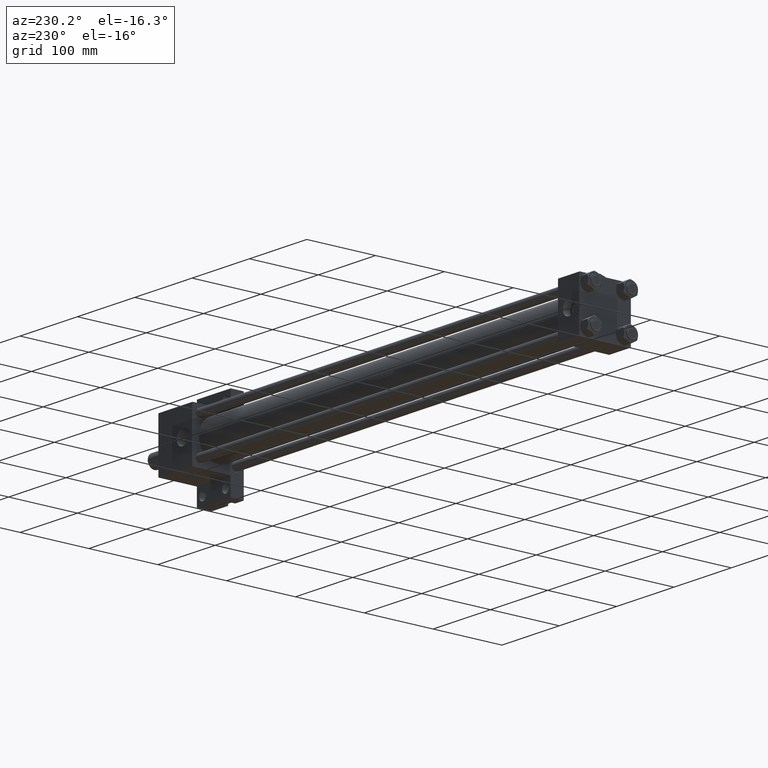
[diagram: clean part render]
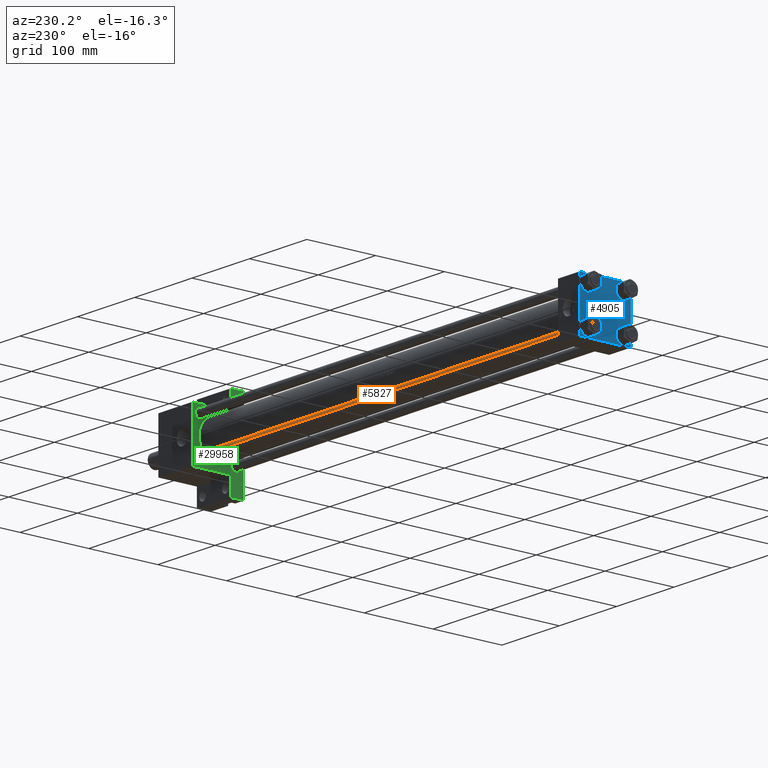
[diagram: same view with three faces highlighted in distinct colors, each labeled with its STEP entity id]
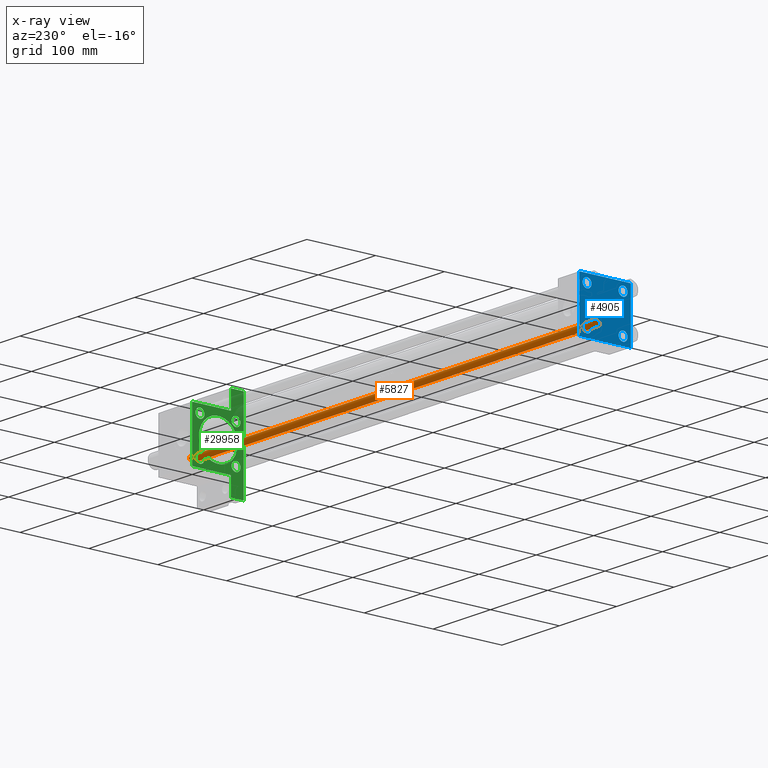
[diagram: x-ray of the same camera — body ghosted, the three highlighted faces saturated]
A machine part, auxiliary view with three faces highlighted in distinct colors.
The next image is the same camera in x-ray (body ghosted, the three faces saturated) — at least one of them is partly hidden behind the body in this view.
Their STEP definitions:

[orange] entity #5827 — the highlighted cylindrical surface (edge-blend (fillet) strip) has radius 6 mm, axis along (-1, -0, 0).
#2695 = CYLINDRICAL_SURFACE ( 'NONE', #49780, 6.000000000000000888 ) ;
#2782 = ORIENTED_EDGE ( 'NONE', *, *, #19707, .T. ) ;
#3633 = VECTOR ( 'NONE', #28556, 1000.000000000000000 ) ;
#3667 = VERTEX_POINT ( 'NONE', #45545 ) ;
#3872 = CARTESIAN_POINT ( 'NONE',  ( 6.000000000000000888, 7.347880794884120722E-16, 703.5000000000000000 ) ) ;
#4553 = CARTESIAN_POINT ( 'NONE',  ( -6.000000000000000888, 0.000000000000000000, 0.4999999999998339106 ) ) ;
#5586 = ORIENTED_EDGE ( 'NONE', *, *, #31228, .T. ) ;
#5736 = VERTEX_POINT ( 'NONE', #35572 ) ;
#5770 = FACE_OUTER_BOUND ( 'NONE', #7002, .T. ) ;
#5827 = ADVANCED_FACE ( 'NONE', ( #5770 ), #2695, .T. ) ;
#6147 = DIRECTION ( 'NONE',  ( 1.000000000000000000, 0.000000000000000000, 0.000000000000000000 ) ) ;
#7002 = EDGE_LOOP ( 'NONE', ( #34234, #2782, #5586, #18094 ) ) ;
#7551 = CARTESIAN_POINT ( 'NONE',  ( 0.000000000000000000, 0.000000000000000000, 703.5000000000000000 ) ) ;
#9590 = CARTESIAN_POINT ( 'NONE',  ( 0.000000000000000000, 0.000000000000000000, 704.0000000000000000 ) ) ;
#9750 = VERTEX_POINT ( 'NONE', #3872 ) ;
#10291 = VERTEX_POINT ( 'NONE', #4553 ) ;
#10960 = AXIS2_PLACEMENT_3D ( 'NONE', #7551, #26057, #30107 ) ;
#14761 = AXIS2_PLACEMENT_3D ( 'NONE', #25409, #33018, #6147 ) ;
#17804 = DIRECTION ( 'NONE',  ( -0.000000000000000000, -0.000000000000000000, -1.000000000000000000 ) ) ;
#17950 = DIRECTION ( 'NONE',  ( -0.000000000000000000, -0.000000000000000000, -1.000000000000000000 ) ) ;
#18094 = ORIENTED_EDGE ( 'NONE', *, *, #40837, .F. ) ;
#19707 = EDGE_CURVE ( 'NONE', #9750, #5736, #48220, .T. ) ;
#23071 = CIRCLE ( 'NONE', #10960, 6.000000000000000888 ) ;
#25009 = CARTESIAN_POINT ( 'NONE',  ( -6.000000000000000888, 0.000000000000000000, 704.0000000000000000 ) ) ;
#25409 = CARTESIAN_POINT ( 'NONE',  ( 0.000000000000000000, 0.000000000000000000, 0.4999999999998339106 ) ) ;
#25634 = CARTESIAN_POINT ( 'NONE',  ( 6.000000000000000888, 7.347880794884120722E-16, 704.0000000000000000 ) ) ;
#26057 = DIRECTION ( 'NONE',  ( 0.000000000000000000, 0.000000000000000000, -1.000000000000000000 ) ) ;
#28556 = DIRECTION ( 'NONE',  ( -0.000000000000000000, -0.000000000000000000, -1.000000000000000000 ) ) ;
#30107 = DIRECTION ( 'NONE',  ( 1.000000000000000000, 0.000000000000000000, 0.000000000000000000 ) ) ;
#31228 = EDGE_CURVE ( 'NONE', #5736, #10291, #43885, .T. ) ;
#33018 = DIRECTION ( 'NONE',  ( -0.000000000000000000, -0.000000000000000000, 1.000000000000000000 ) ) ;
#34234 = ORIENTED_EDGE ( 'NONE', *, *, #41771, .T. ) ;
#35572 = CARTESIAN_POINT ( 'NONE',  ( 6.000000000000000888, 7.347880794884120722E-16, 0.4999999999998339106 ) ) ;
#38788 = VECTOR ( 'NONE', #17804, 1000.000000000000000 ) ;
#40750 = DIRECTION ( 'NONE',  ( -1.000000000000000000, 0.000000000000000000, 0.000000000000000000 ) ) ;
#40837 = EDGE_CURVE ( 'NONE', #3667, #10291, #47329, .T. ) ;
#41771 = EDGE_CURVE ( 'NONE', #3667, #9750, #23071, .T. ) ;
#43885 = CIRCLE ( 'NONE', #14761, 6.000000000000000888 ) ;
#45545 = CARTESIAN_POINT ( 'NONE',  ( -6.000000000000000888, 0.000000000000000000, 703.5000000000000000 ) ) ;
#47329 = LINE ( 'NONE', #25009, #3633 ) ;
#48220 = LINE ( 'NONE', #25634, #38788 ) ;
#49780 = AXIS2_PLACEMENT_3D ( 'NONE', #9590, #17950, #40750 ) ;

[blue] entity #4905 — the highlighted planar face has unit normal (-1, 0, -0).
#125 = EDGE_LOOP ( 'NONE', ( #15832, #11722 ) ) ;
#472 = DIRECTION ( 'NONE',  ( 1.000000000000000000, -0.000000000000000000, 0.000000000000000000 ) ) ;
#2091 = FACE_BOUND ( 'NONE', #33349, .T. ) ;
#2191 = EDGE_CURVE ( 'NONE', #30911, #30670, #15658, .T. ) ;
#2587 = CARTESIAN_POINT ( 'NONE',  ( 0.000000000000000000, 37.24999999999998579, -37.24999999999998579 ) ) ;
#2769 = VERTEX_POINT ( 'NONE', #30083 ) ;
#3006 = ORIENTED_EDGE ( 'NONE', *, *, #47668, .T. ) ;
#3012 = DIRECTION ( 'NONE',  ( -0.000000000000000000, 0.000000000000000000, 1.000000000000000000 ) ) ;
#3339 = CARTESIAN_POINT ( 'NONE',  ( 0.000000000000000000, -37.50000000000000711, 37.49999999999999289 ) ) ;
#3352 = LINE ( 'NONE', #38335, #21105 ) ;
#3385 = EDGE_CURVE ( 'NONE', #11712, #18081, #48883, .T. ) ;
#3500 = DIRECTION ( 'NONE',  ( 0.000000000000000000, 0.000000000000000000, 1.000000000000000000 ) ) ;
#4515 = CARTESIAN_POINT ( 'NONE',  ( 0.000000000000000000, 37.49999999999999289, 37.00000000000000000 ) ) ;
#4631 = DIRECTION ( 'NONE',  ( 0.000000000000000000, -0.7071067811865524577, 0.7071067811865426878 ) ) ;
#4738 = ORIENTED_EDGE ( 'NONE', *, *, #5580, .T. ) ;
#4905 = ADVANCED_FACE ( 'NONE', ( #2091, #14451, #21363, #22790, #18753 ), #18255, .T. ) ;
#5330 = VECTOR ( 'NONE', #46034, 1000.000000000000000 ) ;
#5580 = EDGE_CURVE ( 'NONE', #17400, #12456, #11528, .T. ) ;
#5888 = EDGE_CURVE ( 'NONE', #33596, #2769, #49859, .T. ) ;
#6824 = DIRECTION ( 'NONE',  ( -1.000000000000000000, 0.000000000000000000, -0.000000000000000000 ) ) ;
#7188 = DIRECTION ( 'NONE',  ( 0.000000000000000000, 0.000000000000000000, 1.000000000000000000 ) ) ;
#7309 = EDGE_CURVE ( 'NONE', #20172, #33596, #25903, .T. ) ;
#7392 = ORIENTED_EDGE ( 'NONE', *, *, #40353, .F. ) ;
#7461 = VERTEX_POINT ( 'NONE', #48939 ) ;
#7464 = ORIENTED_EDGE ( 'NONE', *, *, #31902, .T. ) ;
#7592 = ORIENTED_EDGE ( 'NONE', *, *, #7309, .T. ) ;
#8740 = CARTESIAN_POINT ( 'NONE',  ( 0.000000000000000000, -26.14999999999999147, 26.15000000000000924 ) ) ;
#8802 = CARTESIAN_POINT ( 'NONE',  ( 0.000000000000000000, 26.14999999999999858, 19.64999999999998437 ) ) ;
#9568 = EDGE_CURVE ( 'NONE', #34176, #7461, #14276, .T. ) ;
#9616 = ORIENTED_EDGE ( 'NONE', *, *, #24279, .T. ) ;
#9818 = ORIENTED_EDGE ( 'NONE', *, *, #3385, .T. ) ;
#9908 = CIRCLE ( 'NONE', #35692, 6.500000000000015987 ) ;
#9920 = AXIS2_PLACEMENT_3D ( 'NONE', #45963, #33539, #30481 ) ;
#10299 = CARTESIAN_POINT ( 'NONE',  ( 0.000000000000000000, 26.14999999999999858, 32.65000000000002700 ) ) ;
#11528 = LINE ( 'NONE', #31533, #38396 ) ;
#11707 = CARTESIAN_POINT ( 'NONE',  ( 0.000000000000000000, -26.14999999999999147, -26.15000000000000924 ) ) ;
#11712 = VERTEX_POINT ( 'NONE', #12640 ) ;
#11722 = ORIENTED_EDGE ( 'NONE', *, *, #41580, .T. ) ;
#11877 = AXIS2_PLACEMENT_3D ( 'NONE', #14856, #42219, #30296 ) ;
#12132 = CARTESIAN_POINT ( 'NONE',  ( 0.000000000000000000, 36.99999999999997868, -37.50000000000000000 ) ) ;
#12136 = CARTESIAN_POINT ( 'NONE',  ( 0.000000000000000000, 26.14999999999999858, -26.15000000000000213 ) ) ;
#12456 = VERTEX_POINT ( 'NONE', #4515 ) ;
#12640 = CARTESIAN_POINT ( 'NONE',  ( 0.000000000000000000, 26.14999999999999858, -32.65000000000001990 ) ) ;
#13434 = CIRCLE ( 'NONE', #23109, 6.500000000000023093 ) ;
#14276 = CIRCLE ( 'NONE', #37726, 6.500000000000023093 ) ;
#14451 = FACE_BOUND ( 'NONE', #25171, .T. ) ;
#14514 = EDGE_LOOP ( 'NONE', ( #15037, #7592, #24672, #14656, #7392, #3006, #18576, #4738 ) ) ;
#14656 = ORIENTED_EDGE ( 'NONE', *, *, #14682, .T. ) ;
#14682 = EDGE_CURVE ( 'NONE', #2769, #18714, #32016, .T. ) ;
#14856 = CARTESIAN_POINT ( 'NONE',  ( 0.000000000000000000, -26.14999999999999147, -26.15000000000000924 ) ) ;
#15037 = ORIENTED_EDGE ( 'NONE', *, *, #44546, .T. ) ;
#15658 = CIRCLE ( 'NONE', #43983, 6.500000000000015987 ) ;
#15832 = ORIENTED_EDGE ( 'NONE', *, *, #43292, .T. ) ;
#15991 = VECTOR ( 'NONE', #38172, 1000.000000000000114 ) ;
#16490 = AXIS2_PLACEMENT_3D ( 'NONE', #12136, #26828, #3500 ) ;
#16614 = AXIS2_PLACEMENT_3D ( 'NONE', #20519, #472, #40036 ) ;
#16860 = DIRECTION ( 'NONE',  ( 0.000000000000000000, 0.000000000000000000, 1.000000000000000000 ) ) ;
#17400 = VERTEX_POINT ( 'NONE', #26029 ) ;
#17534 = CARTESIAN_POINT ( 'NONE',  ( 0.000000000000000000, 26.14999999999999858, -19.64999999999998792 ) ) ;
#17563 = CIRCLE ( 'NONE', #11877, 6.500000000000015987 ) ;
#18081 = VERTEX_POINT ( 'NONE', #17534 ) ;
#18255 = PLANE ( 'NONE',  #44086 ) ;
#18576 = ORIENTED_EDGE ( 'NONE', *, *, #27324, .F. ) ;
#18584 = LINE ( 'NONE', #3339, #25501 ) ;
#18714 = VERTEX_POINT ( 'NONE', #38077 ) ;
#18753 = FACE_OUTER_BOUND ( 'NONE', #14514, .T. ) ;
#19334 = DIRECTION ( 'NONE',  ( 0.000000000000000000, 9.251858538542971581E-17, -1.000000000000000000 ) ) ;
#19745 = VERTEX_POINT ( 'NONE', #40607 ) ;
#20055 = DIRECTION ( 'NONE',  ( 0.000000000000000000, 0.000000000000000000, 1.000000000000000000 ) ) ;
#20172 = VERTEX_POINT ( 'NONE', #39454 ) ;
#20519 = CARTESIAN_POINT ( 'NONE',  ( 0.000000000000000000, 26.14999999999999858, 26.15000000000000213 ) ) ;
#21105 = VECTOR ( 'NONE', #46209, 1000.000000000000000 ) ;
#21363 = FACE_BOUND ( 'NONE', #46254, .T. ) ;
#22715 = LINE ( 'NONE', #30065, #15991 ) ;
#22790 = FACE_BOUND ( 'NONE', #125, .T. ) ;
#22972 = VERTEX_POINT ( 'NONE', #8802 ) ;
#23109 = AXIS2_PLACEMENT_3D ( 'NONE', #40896, #41149, #37329 ) ;
#23226 = CARTESIAN_POINT ( 'NONE',  ( 0.000000000000000000, 37.49999999999999289, -37.50000000000000000 ) ) ;
#23906 = CARTESIAN_POINT ( 'NONE',  ( 0.000000000000000000, -37.24999999999975842, -37.25000000000027001 ) ) ;
#24279 = EDGE_CURVE ( 'NONE', #18081, #11712, #9908, .T. ) ;
#24672 = ORIENTED_EDGE ( 'NONE', *, *, #5888, .T. ) ;
#25171 = EDGE_LOOP ( 'NONE', ( #32854, #39779 ) ) ;
#25501 = VECTOR ( 'NONE', #19334, 1000.000000000000000 ) ;
#25703 = CARTESIAN_POINT ( 'NONE',  ( 0.000000000000000000, 26.14999999999999858, -26.15000000000000213 ) ) ;
#25903 = LINE ( 'NONE', #2587, #44166 ) ;
#26029 = CARTESIAN_POINT ( 'NONE',  ( 0.000000000000000000, 36.99999999999999289, 37.50000000000000000 ) ) ;
#26341 = CARTESIAN_POINT ( 'NONE',  ( 0.000000000000000000, 0.000000000000000000, 0.000000000000000000 ) ) ;
#26527 = DIRECTION ( 'NONE',  ( 0.000000000000000000, -1.000000000000000000, -9.251858538542972814E-17 ) ) ;
#26698 = CARTESIAN_POINT ( 'NONE',  ( 0.000000000000000000, -37.50000000000000711, 36.99999999999999289 ) ) ;
#26828 = DIRECTION ( 'NONE',  ( 1.000000000000000000, -0.000000000000000000, 0.000000000000000000 ) ) ;
#27324 = EDGE_CURVE ( 'NONE', #17400, #19745, #3352, .T. ) ;
#29505 = DIRECTION ( 'NONE',  ( 1.000000000000000000, -0.000000000000000000, 0.000000000000000000 ) ) ;
#30065 = CARTESIAN_POINT ( 'NONE',  ( -0.000000000000000000, -37.25000000000000000, 37.25000000000000000 ) ) ;
#30083 = CARTESIAN_POINT ( 'NONE',  ( 0.000000000000000000, -37.00000000000002132, -37.50000000000000711 ) ) ;
#30296 = DIRECTION ( 'NONE',  ( 0.000000000000000000, 0.000000000000000000, 1.000000000000000000 ) ) ;
#30374 = CIRCLE ( 'NONE', #16614, 6.500000000000023093 ) ;
#30481 = DIRECTION ( 'NONE',  ( 0.000000000000000000, 0.000000000000000000, 1.000000000000000000 ) ) ;
#30504 = CARTESIAN_POINT ( 'NONE',  ( 0.000000000000000000, -26.14999999999999147, -19.64999999999999503 ) ) ;
#30670 = VERTEX_POINT ( 'NONE', #47545 ) ;
#30911 = VERTEX_POINT ( 'NONE', #30504 ) ;
#31533 = CARTESIAN_POINT ( 'NONE',  ( 0.000000000000000000, 37.24999999999999289, 37.24999999999999289 ) ) ;
#31762 = CIRCLE ( 'NONE', #9920, 6.500000000000023093 ) ;
#31902 = EDGE_CURVE ( 'NONE', #7461, #34176, #31762, .T. ) ;
#32016 = LINE ( 'NONE', #23906, #34558 ) ;
#32527 = DIRECTION ( 'NONE',  ( -0.000000000000000000, -0.7071067811865474617, -0.7071067811865474617 ) ) ;
#32854 = ORIENTED_EDGE ( 'NONE', *, *, #2191, .T. ) ;
#33349 = EDGE_LOOP ( 'NONE', ( #7464, #46506 ) ) ;
#33539 = DIRECTION ( 'NONE',  ( 1.000000000000000000, -0.000000000000000000, 0.000000000000000000 ) ) ;
#33596 = VERTEX_POINT ( 'NONE', #12132 ) ;
#34176 = VERTEX_POINT ( 'NONE', #43605 ) ;
#34558 = VECTOR ( 'NONE', #4631, 1000.000000000000000 ) ;
#34828 = DIRECTION ( 'NONE',  ( 0.000000000000000000, 0.7071067811865474617, -0.7071067811865474617 ) ) ;
#35692 = AXIS2_PLACEMENT_3D ( 'NONE', #25703, #29505, #7188 ) ;
#36479 = CARTESIAN_POINT ( 'NONE',  ( 0.000000000000000000, 37.49999999999999289, 37.50000000000000000 ) ) ;
#36727 = LINE ( 'NONE', #36479, #5330 ) ;
#37329 = DIRECTION ( 'NONE',  ( 0.000000000000000000, 0.000000000000000000, 1.000000000000000000 ) ) ;
#37726 = AXIS2_PLACEMENT_3D ( 'NONE', #8740, #43721, #16860 ) ;
#38077 = CARTESIAN_POINT ( 'NONE',  ( 0.000000000000000000, -37.50000000000000000, -37.00000000000003553 ) ) ;
#38172 = DIRECTION ( 'NONE',  ( -0.000000000000000000, 0.7071067811865474617, 0.7071067811865474617 ) ) ;
#38335 = CARTESIAN_POINT ( 'NONE',  ( 0.000000000000000000, 37.49999999999999289, 37.50000000000000000 ) ) ;
#38396 = VECTOR ( 'NONE', #34828, 1000.000000000000114 ) ;
#39454 = CARTESIAN_POINT ( 'NONE',  ( 0.000000000000000000, 37.49999999999999289, -36.99999999999998579 ) ) ;
#39779 = ORIENTED_EDGE ( 'NONE', *, *, #44609, .T. ) ;
#40030 = VERTEX_POINT ( 'NONE', #10299 ) ;
#40036 = DIRECTION ( 'NONE',  ( 0.000000000000000000, 0.000000000000000000, 1.000000000000000000 ) ) ;
#40353 = EDGE_CURVE ( 'NONE', #46816, #18714, #18584, .T. ) ;
#40607 = CARTESIAN_POINT ( 'NONE',  ( 0.000000000000000000, -37.00000000000000711, 37.49999999999999289 ) ) ;
#40896 = CARTESIAN_POINT ( 'NONE',  ( 0.000000000000000000, 26.14999999999999858, 26.15000000000000213 ) ) ;
#41149 = DIRECTION ( 'NONE',  ( 1.000000000000000000, -0.000000000000000000, 0.000000000000000000 ) ) ;
#41580 = EDGE_CURVE ( 'NONE', #22972, #40030, #30374, .T. ) ;
#42219 = DIRECTION ( 'NONE',  ( 1.000000000000000000, -0.000000000000000000, 0.000000000000000000 ) ) ;
#43292 = EDGE_CURVE ( 'NONE', #40030, #22972, #13434, .T. ) ;
#43369 = DIRECTION ( 'NONE',  ( 1.000000000000000000, -0.000000000000000000, 0.000000000000000000 ) ) ;
#43605 = CARTESIAN_POINT ( 'NONE',  ( 0.000000000000000000, -26.14999999999999147, 19.64999999999999147 ) ) ;
#43721 = DIRECTION ( 'NONE',  ( 1.000000000000000000, -0.000000000000000000, 0.000000000000000000 ) ) ;
#43983 = AXIS2_PLACEMENT_3D ( 'NONE', #11707, #43369, #20055 ) ;
#44086 = AXIS2_PLACEMENT_3D ( 'NONE', #26341, #6824, #3012 ) ;
#44166 = VECTOR ( 'NONE', #32527, 1000.000000000000114 ) ;
#44546 = EDGE_CURVE ( 'NONE', #12456, #20172, #36727, .T. ) ;
#44609 = EDGE_CURVE ( 'NONE', #30670, #30911, #17563, .T. ) ;
#44891 = VECTOR ( 'NONE', #26527, 1000.000000000000000 ) ;
#45963 = CARTESIAN_POINT ( 'NONE',  ( 0.000000000000000000, -26.14999999999999147, 26.15000000000000924 ) ) ;
#46034 = DIRECTION ( 'NONE',  ( 0.000000000000000000, 0.000000000000000000, -1.000000000000000000 ) ) ;
#46209 = DIRECTION ( 'NONE',  ( 0.000000000000000000, -1.000000000000000000, -9.251858538542971581E-17 ) ) ;
#46254 = EDGE_LOOP ( 'NONE', ( #9616, #9818 ) ) ;
#46506 = ORIENTED_EDGE ( 'NONE', *, *, #9568, .T. ) ;
#46816 = VERTEX_POINT ( 'NONE', #26698 ) ;
#47545 = CARTESIAN_POINT ( 'NONE',  ( 0.000000000000000000, -26.14999999999999147, -32.65000000000002700 ) ) ;
#47668 = EDGE_CURVE ( 'NONE', #46816, #19745, #22715, .T. ) ;
#48883 = CIRCLE ( 'NONE', #16490, 6.500000000000015987 ) ;
#48939 = CARTESIAN_POINT ( 'NONE',  ( 0.000000000000000000, -26.14999999999999147, 32.65000000000003411 ) ) ;
#49859 = LINE ( 'NONE', #23226, #44891 ) ;

[green] entity #29958 — the highlighted planar face has unit normal (-1, 0, 0).
#389 = DIRECTION ( 'NONE',  ( 1.000000000000000000, 0.000000000000000000, 0.000000000000000000 ) ) ;
#452 = ORIENTED_EDGE ( 'NONE', *, *, #8351, .T. ) ;
#510 = EDGE_CURVE ( 'NONE', #31271, #19573, #38992, .T. ) ;
#834 = EDGE_LOOP ( 'NONE', ( #452, #34452 ) ) ;
#1309 = LINE ( 'NONE', #16056, #33286 ) ;
#1464 = ORIENTED_EDGE ( 'NONE', *, *, #43520, .T. ) ;
#2027 = ORIENTED_EDGE ( 'NONE', *, *, #11104, .T. ) ;
#2038 = VECTOR ( 'NONE', #27043, 1000.000000000000000 ) ;
#2448 = CARTESIAN_POINT ( 'NONE',  ( 675.0000000000000000, 37.50000000000000000, -18.50000000000000355 ) ) ;
#2871 = EDGE_CURVE ( 'NONE', #49325, #40700, #12432, .T. ) ;
#3231 = CARTESIAN_POINT ( 'NONE',  ( 675.0000000000000000, -63.50000000000008527, -18.50000000000000000 ) ) ;
#3265 = ORIENTED_EDGE ( 'NONE', *, *, #47701, .T. ) ;
#3472 = CARTESIAN_POINT ( 'NONE',  ( 675.0000000000000000, 3.490243377569956456E-15, -28.50000000000000000 ) ) ;
#3601 = CARTESIAN_POINT ( 'NONE',  ( 675.0000000000000000, -36.99999999999982947, 37.49999999999997868 ) ) ;
#3714 = CARTESIAN_POINT ( 'NONE',  ( 675.0000000000000000, -26.14999999999999147, 19.65000000000000213 ) ) ;
#3801 = DIRECTION ( 'NONE',  ( 1.000000000000000000, 0.000000000000000000, -0.000000000000000000 ) ) ;
#3924 = VERTEX_POINT ( 'NONE', #33499 ) ;
#4186 = FACE_OUTER_BOUND ( 'NONE', #39570, .T. ) ;
#4591 = DIRECTION ( 'NONE',  ( 1.000000000000000000, 0.000000000000000000, -0.000000000000000000 ) ) ;
#4648 = ORIENTED_EDGE ( 'NONE', *, *, #28046, .T. ) ;
#5113 = DIRECTION ( 'NONE',  ( 0.000000000000000000, 0.7071067811865474617, -0.7071067811865474617 ) ) ;
#5543 = DIRECTION ( 'NONE',  ( 1.000000000000000000, 0.000000000000000000, -0.000000000000000000 ) ) ;
#5668 = LINE ( 'NONE', #37092, #12772 ) ;
#5697 = CARTESIAN_POINT ( 'NONE',  ( 675.0000000000000000, 37.50000000000000000, 37.49999999999999289 ) ) ;
#5850 = DIRECTION ( 'NONE',  ( 0.000000000000000000, 0.000000000000000000, 1.000000000000000000 ) ) ;
#5909 = ORIENTED_EDGE ( 'NONE', *, *, #39585, .T. ) ;
#6319 = CARTESIAN_POINT ( 'NONE',  ( 675.0000000000000000, 63.49999999999994316, -18.50000000000000000 ) ) ;
#6339 = VERTEX_POINT ( 'NONE', #7449 ) ;
#6353 = DIRECTION ( 'NONE',  ( 1.000000000000000000, 0.000000000000000000, -0.000000000000000000 ) ) ;
#6530 = ORIENTED_EDGE ( 'NONE', *, *, #42250, .T. ) ;
#7021 = VERTEX_POINT ( 'NONE', #44508 ) ;
#7301 = DIRECTION ( 'NONE',  ( 1.000000000000000000, 0.000000000000000000, -0.000000000000000000 ) ) ;
#7449 = CARTESIAN_POINT ( 'NONE',  ( 675.0000000000000000, 36.99999999999982947, 37.49999999999999289 ) ) ;
#7525 = CARTESIAN_POINT ( 'NONE',  ( 675.0000000000000000, 6.123233995736772199E-17, -0.5000000000000004441 ) ) ;
#7649 = CARTESIAN_POINT ( 'NONE',  ( 675.0000000000000000, -37.50000000000000000, 36.99999999999980815 ) ) ;
#8180 = DIRECTION ( 'NONE',  ( 1.000000000000000000, 0.000000000000000000, -0.000000000000000000 ) ) ;
#8351 = EDGE_CURVE ( 'NONE', #17527, #15759, #14245, .T. ) ;
#8537 = CARTESIAN_POINT ( 'NONE',  ( 675.0000000000000000, 26.14999999999999858, -19.64999999999999503 ) ) ;
#9004 = DIRECTION ( 'NONE',  ( -1.000000000000000000, -0.000000000000000000, 0.000000000000000000 ) ) ;
#9213 = VERTEX_POINT ( 'NONE', #11927 ) ;
#9799 = CARTESIAN_POINT ( 'NONE',  ( 675.0000000000000000, 26.14999999999999858, -26.15000000000000213 ) ) ;
#10040 = DIRECTION ( 'NONE',  ( 0.000000000000000000, 0.000000000000000000, 1.000000000000000000 ) ) ;
#10666 = VERTEX_POINT ( 'NONE', #2448 ) ;
#10729 = CARTESIAN_POINT ( 'NONE',  ( 675.0000000000000000, -26.14999999999999147, -19.65000000000000213 ) ) ;
#10993 = LINE ( 'NONE', #23140, #20003 ) ;
#11012 = VERTEX_POINT ( 'NONE', #44237 ) ;
#11026 = DIRECTION ( 'NONE',  ( 0.000000000000000000, 0.000000000000000000, 1.000000000000000000 ) ) ;
#11104 = EDGE_CURVE ( 'NONE', #11012, #19573, #16623, .T. ) ;
#11567 = FACE_BOUND ( 'NONE', #34100, .T. ) ;
#11620 = DIRECTION ( 'NONE',  ( 0.000000000000000000, 0.000000000000000000, 1.000000000000000000 ) ) ;
#11727 = DIRECTION ( 'NONE',  ( 0.000000000000000000, 0.000000000000000000, 1.000000000000000000 ) ) ;
#11762 = CARTESIAN_POINT ( 'NONE',  ( 675.0000000000000000, 6.123233995736772199E-17, 27.50000000000000000 ) ) ;
#11838 = CIRCLE ( 'NONE', #42580, 6.500000000000008882 ) ;
#11927 = CARTESIAN_POINT ( 'NONE',  ( 675.0000000000000000, -26.14999999999999147, -32.65000000000002700 ) ) ;
#11933 = CARTESIAN_POINT ( 'NONE',  ( 675.0000000000000000, 37.50000000000000000, 36.99999999999982236 ) ) ;
#12239 = CIRCLE ( 'NONE', #26770, 6.500000000000008882 ) ;
#12432 = CIRCLE ( 'NONE', #49708, 28.00000000000000000 ) ;
#12772 = VECTOR ( 'NONE', #48520, 1000.000000000000114 ) ;
#13289 = EDGE_LOOP ( 'NONE', ( #35025, #22621 ) ) ;
#13329 = CIRCLE ( 'NONE', #24622, 6.500000000000008882 ) ;
#14141 = VERTEX_POINT ( 'NONE', #7649 ) ;
#14245 = CIRCLE ( 'NONE', #46624, 6.499999999999995559 ) ;
#15461 = CIRCLE ( 'NONE', #21922, 6.500000000000008882 ) ;
#15759 = VERTEX_POINT ( 'NONE', #42951 ) ;
#15897 = DIRECTION ( 'NONE',  ( 0.000000000000000000, 0.000000000000000000, -1.000000000000000000 ) ) ;
#16056 = CARTESIAN_POINT ( 'NONE',  ( 675.0000000000000000, 37.24999999999990763, 37.24999999999990763 ) ) ;
#16623 = LINE ( 'NONE', #36374, #35274 ) ;
#16944 = DIRECTION ( 'NONE',  ( 0.000000000000000000, 0.000000000000000000, -1.000000000000000000 ) ) ;
#17527 = VERTEX_POINT ( 'NONE', #48326 ) ;
#17533 = EDGE_CURVE ( 'NONE', #35504, #26826, #39552, .T. ) ;
#17732 = AXIS2_PLACEMENT_3D ( 'NONE', #9799, #44764, #10040 ) ;
#18766 = VERTEX_POINT ( 'NONE', #3601 ) ;
#18921 = FACE_BOUND ( 'NONE', #13289, .T. ) ;
#19312 = CARTESIAN_POINT ( 'NONE',  ( 675.0000000000000000, -63.50000000000008527, -18.50000000000000000 ) ) ;
#19425 = CARTESIAN_POINT ( 'NONE',  ( 675.0000000000000000, 0.000000000000000000, 0.000000000000000000 ) ) ;
#19573 = VERTEX_POINT ( 'NONE', #30993 ) ;
#19873 = VERTEX_POINT ( 'NONE', #11933 ) ;
#19910 = DIRECTION ( 'NONE',  ( 1.000000000000000000, 0.000000000000000000, 0.000000000000000000 ) ) ;
#20003 = VECTOR ( 'NONE', #38088, 1000.000000000000000 ) ;
#20815 = VERTEX_POINT ( 'NONE', #25033 ) ;
#21339 = CARTESIAN_POINT ( 'NONE',  ( 675.0000000000000000, -37.50000000000000000, 37.49999999999997868 ) ) ;
#21870 = ORIENTED_EDGE ( 'NONE', *, *, #17533, .T. ) ;
#21922 = AXIS2_PLACEMENT_3D ( 'NONE', #38781, #3801, #35472 ) ;
#22621 = ORIENTED_EDGE ( 'NONE', *, *, #35716, .T. ) ;
#23140 = CARTESIAN_POINT ( 'NONE',  ( 675.0000000000000000, 63.49999999999994316, -18.50000000000000000 ) ) ;
#23217 = FACE_BOUND ( 'NONE', #45734, .T. ) ;
#23550 = ORIENTED_EDGE ( 'NONE', *, *, #29326, .T. ) ;
#24277 = CARTESIAN_POINT ( 'NONE',  ( 675.0000000000000000, -63.50000000000008527, -18.50000000000000000 ) ) ;
#24622 = AXIS2_PLACEMENT_3D ( 'NONE', #35521, #4591, #11727 ) ;
#25033 = CARTESIAN_POINT ( 'NONE',  ( 675.0000000000000000, 63.49999999999994316, -18.50000000000000000 ) ) ;
#25427 = AXIS2_PLACEMENT_3D ( 'NONE', #27510, #19910, #43219 ) ;
#25949 = LINE ( 'NONE', #5697, #30304 ) ;
#26211 = CARTESIAN_POINT ( 'NONE',  ( 675.0000000000000000, 26.14999999999999858, 26.15000000000000213 ) ) ;
#26544 = CARTESIAN_POINT ( 'NONE',  ( 675.0000000000000000, 37.50000000000000000, 37.49999999999999289 ) ) ;
#26751 = ORIENTED_EDGE ( 'NONE', *, *, #49319, .T. ) ;
#26770 = AXIS2_PLACEMENT_3D ( 'NONE', #30617, #7301, #11620 ) ;
#26826 = VERTEX_POINT ( 'NONE', #8537 ) ;
#27043 = DIRECTION ( 'NONE',  ( 0.000000000000000000, 0.000000000000000000, -1.000000000000000000 ) ) ;
#27120 = VECTOR ( 'NONE', #44912, 1000.000000000000000 ) ;
#27404 = CIRCLE ( 'NONE', #29829, 6.500000000000008882 ) ;
#27462 = ORIENTED_EDGE ( 'NONE', *, *, #510, .F. ) ;
#27510 = CARTESIAN_POINT ( 'NONE',  ( 675.0000000000000000, 6.123233995736772199E-17, -0.5000000000000004441 ) ) ;
#27784 = EDGE_CURVE ( 'NONE', #37999, #7021, #15461, .T. ) ;
#28046 = EDGE_CURVE ( 'NONE', #26826, #35504, #12239, .T. ) ;
#29326 = EDGE_CURVE ( 'NONE', #6339, #19873, #1309, .T. ) ;
#29437 = LINE ( 'NONE', #21339, #27120 ) ;
#29829 = AXIS2_PLACEMENT_3D ( 'NONE', #46479, #8180, #35052 ) ;
#29958 = ADVANCED_FACE ( 'NONE', ( #11567, #38920, #23217, #38677, #18921, #4186 ), #49845, .T. ) ;
#30260 = CIRCLE ( 'NONE', #25427, 28.00000000000000000 ) ;
#30304 = VECTOR ( 'NONE', #32819, 1000.000000000000000 ) ;
#30617 = CARTESIAN_POINT ( 'NONE',  ( 675.0000000000000000, 26.14999999999999858, -26.15000000000000213 ) ) ;
#30948 = VECTOR ( 'NONE', #16944, 1000.000000000000000 ) ;
#30972 = ORIENTED_EDGE ( 'NONE', *, *, #27784, .T. ) ;
#30993 = CARTESIAN_POINT ( 'NONE',  ( 675.0000000000000000, -63.50000000000008527, -37.50000000000000000 ) ) ;
#31271 = VERTEX_POINT ( 'NONE', #19312 ) ;
#31955 = ORIENTED_EDGE ( 'NONE', *, *, #45928, .T. ) ;
#32067 = DIRECTION ( 'NONE',  ( 0.000000000000000000, -1.000000000000000000, 0.000000000000000000 ) ) ;
#32117 = ORIENTED_EDGE ( 'NONE', *, *, #36929, .F. ) ;
#32819 = DIRECTION ( 'NONE',  ( 0.000000000000000000, -1.000000000000000000, -1.850371707708594316E-16 ) ) ;
#33286 = VECTOR ( 'NONE', #5113, 1000.000000000000114 ) ;
#33483 = EDGE_CURVE ( 'NONE', #20815, #11012, #33678, .T. ) ;
#33499 = CARTESIAN_POINT ( 'NONE',  ( 675.0000000000000000, -37.50000000000000000, -18.50000000000000000 ) ) ;
#33678 = LINE ( 'NONE', #6319, #49655 ) ;
#33902 = ORIENTED_EDGE ( 'NONE', *, *, #33483, .T. ) ;
#34100 = EDGE_LOOP ( 'NONE', ( #5909, #30972 ) ) ;
#34426 = DIRECTION ( 'NONE',  ( 0.000000000000000000, 0.000000000000000000, -1.000000000000000000 ) ) ;
#34452 = ORIENTED_EDGE ( 'NONE', *, *, #37377, .T. ) ;
#35025 = ORIENTED_EDGE ( 'NONE', *, *, #2871, .T. ) ;
#35052 = DIRECTION ( 'NONE',  ( 0.000000000000000000, 0.000000000000000000, 1.000000000000000000 ) ) ;
#35274 = VECTOR ( 'NONE', #32067, 1000.000000000000000 ) ;
#35472 = DIRECTION ( 'NONE',  ( 0.000000000000000000, 0.000000000000000000, 1.000000000000000000 ) ) ;
#35504 = VERTEX_POINT ( 'NONE', #45290 ) ;
#35521 = CARTESIAN_POINT ( 'NONE',  ( 675.0000000000000000, -26.14999999999999147, 26.15000000000000924 ) ) ;
#35716 = EDGE_CURVE ( 'NONE', #40700, #49325, #30260, .T. ) ;
#35964 = CARTESIAN_POINT ( 'NONE',  ( 675.0000000000000000, -26.14999999999999147, -26.15000000000000924 ) ) ;
#36015 = VECTOR ( 'NONE', #38474, 1000.000000000000000 ) ;
#36374 = CARTESIAN_POINT ( 'NONE',  ( 675.0000000000000000, 37.50000000000000000, -37.50000000000000000 ) ) ;
#36466 = DIRECTION ( 'NONE',  ( 0.000000000000000000, 0.000000000000000000, 1.000000000000000000 ) ) ;
#36881 = EDGE_LOOP ( 'NONE', ( #1464, #26751 ) ) ;
#36929 = EDGE_CURVE ( 'NONE', #6339, #18766, #25949, .T. ) ;
#37092 = CARTESIAN_POINT ( 'NONE',  ( 675.0000000000000000, -37.24999999999990052, 37.24999999999990052 ) ) ;
#37377 = EDGE_CURVE ( 'NONE', #15759, #17527, #40055, .T. ) ;
#37999 = VERTEX_POINT ( 'NONE', #3714 ) ;
#38088 = DIRECTION ( 'NONE',  ( -0.000000000000000000, 1.000000000000000000, -0.000000000000000000 ) ) ;
#38474 = DIRECTION ( 'NONE',  ( 0.000000000000000000, 1.000000000000000000, 0.000000000000000000 ) ) ;
#38677 = FACE_BOUND ( 'NONE', #36881, .T. ) ;
#38781 = CARTESIAN_POINT ( 'NONE',  ( 675.0000000000000000, -26.14999999999999147, 26.15000000000000924 ) ) ;
#38920 = FACE_BOUND ( 'NONE', #834, .T. ) ;
#38992 = LINE ( 'NONE', #24277, #30948 ) ;
#39552 = CIRCLE ( 'NONE', #17732, 6.500000000000008882 ) ;
#39570 = EDGE_LOOP ( 'NONE', ( #32117, #23550, #6530, #31955, #33902, #2027, #27462, #43741, #39688, #3265 ) ) ;
#39585 = EDGE_CURVE ( 'NONE', #7021, #37999, #13329, .T. ) ;
#39688 = ORIENTED_EDGE ( 'NONE', *, *, #42126, .F. ) ;
#40055 = CIRCLE ( 'NONE', #46537, 6.499999999999995559 ) ;
#40700 = VERTEX_POINT ( 'NONE', #3472 ) ;
#41686 = DIRECTION ( 'NONE',  ( 1.000000000000000000, 0.000000000000000000, -0.000000000000000000 ) ) ;
#41804 = EDGE_CURVE ( 'NONE', #31271, #3924, #49650, .T. ) ;
#42126 = EDGE_CURVE ( 'NONE', #14141, #3924, #29437, .T. ) ;
#42250 = EDGE_CURVE ( 'NONE', #19873, #10666, #46072, .T. ) ;
#42580 = AXIS2_PLACEMENT_3D ( 'NONE', #35964, #5543, #36466 ) ;
#42951 = CARTESIAN_POINT ( 'NONE',  ( 675.0000000000000000, 26.14999999999999858, 19.65000000000000568 ) ) ;
#43219 = DIRECTION ( 'NONE',  ( 0.000000000000000000, 0.000000000000000000, -1.000000000000000000 ) ) ;
#43520 = EDGE_CURVE ( 'NONE', #45143, #9213, #11838, .T. ) ;
#43741 = ORIENTED_EDGE ( 'NONE', *, *, #41804, .T. ) ;
#44237 = CARTESIAN_POINT ( 'NONE',  ( 675.0000000000000000, 63.49999999999994316, -37.50000000000000000 ) ) ;
#44508 = CARTESIAN_POINT ( 'NONE',  ( 675.0000000000000000, -26.14999999999999147, 32.65000000000001990 ) ) ;
#44764 = DIRECTION ( 'NONE',  ( 1.000000000000000000, 0.000000000000000000, -0.000000000000000000 ) ) ;
#44912 = DIRECTION ( 'NONE',  ( 0.000000000000000000, -9.251858538542972814E-17, -1.000000000000000000 ) ) ;
#45142 = CARTESIAN_POINT ( 'NONE',  ( 675.0000000000000000, 26.14999999999999858, 26.15000000000000213 ) ) ;
#45143 = VERTEX_POINT ( 'NONE', #10729 ) ;
#45290 = CARTESIAN_POINT ( 'NONE',  ( 675.0000000000000000, 26.14999999999999858, -32.65000000000001279 ) ) ;
#45485 = AXIS2_PLACEMENT_3D ( 'NONE', #19425, #9004, #48042 ) ;
#45734 = EDGE_LOOP ( 'NONE', ( #4648, #21870 ) ) ;
#45928 = EDGE_CURVE ( 'NONE', #10666, #20815, #10993, .T. ) ;
#46072 = LINE ( 'NONE', #26544, #2038 ) ;
#46479 = CARTESIAN_POINT ( 'NONE',  ( 675.0000000000000000, -26.14999999999999147, -26.15000000000000924 ) ) ;
#46537 = AXIS2_PLACEMENT_3D ( 'NONE', #26211, #41686, #11026 ) ;
#46624 = AXIS2_PLACEMENT_3D ( 'NONE', #45142, #6353, #5850 ) ;
#47701 = EDGE_CURVE ( 'NONE', #14141, #18766, #5668, .T. ) ;
#48042 = DIRECTION ( 'NONE',  ( 0.000000000000000000, 0.000000000000000000, 1.000000000000000000 ) ) ;
#48326 = CARTESIAN_POINT ( 'NONE',  ( 675.0000000000000000, 26.14999999999999858, 32.65000000000000568 ) ) ;
#48520 = DIRECTION ( 'NONE',  ( -0.000000000000000000, 0.7071067811865474617, 0.7071067811865474617 ) ) ;
#49319 = EDGE_CURVE ( 'NONE', #9213, #45143, #27404, .T. ) ;
#49325 = VERTEX_POINT ( 'NONE', #11762 ) ;
#49650 = LINE ( 'NONE', #3231, #36015 ) ;
#49655 = VECTOR ( 'NONE', #34426, 1000.000000000000000 ) ;
#49708 = AXIS2_PLACEMENT_3D ( 'NONE', #7525, #389, #15897 ) ;
#49845 = PLANE ( 'NONE',  #45485 ) ;